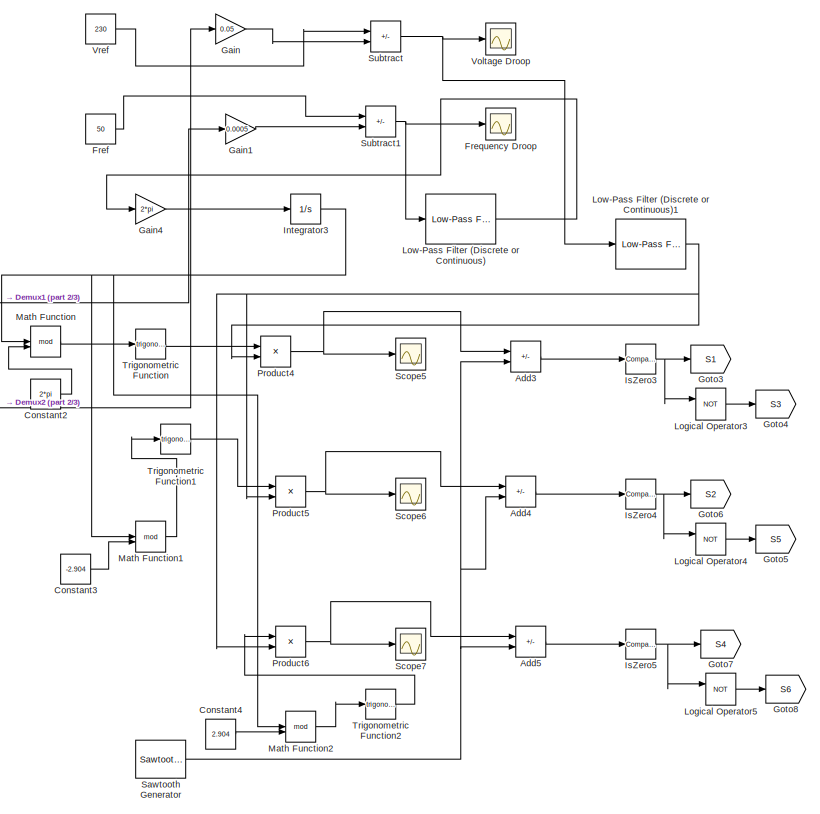
[diagram: root canvas - part 1/3, right side, full height]
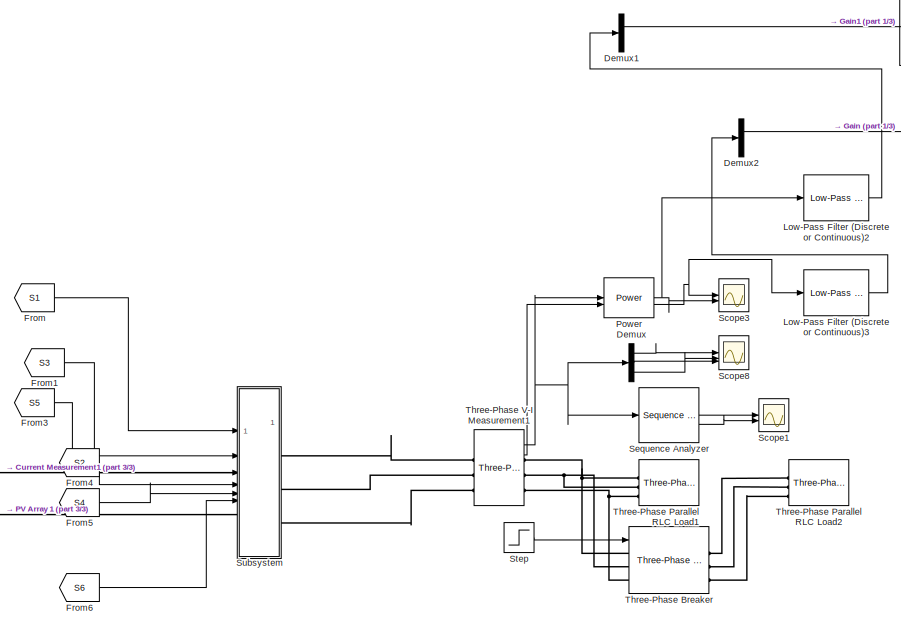
[diagram: root canvas - part 2/3, central region]
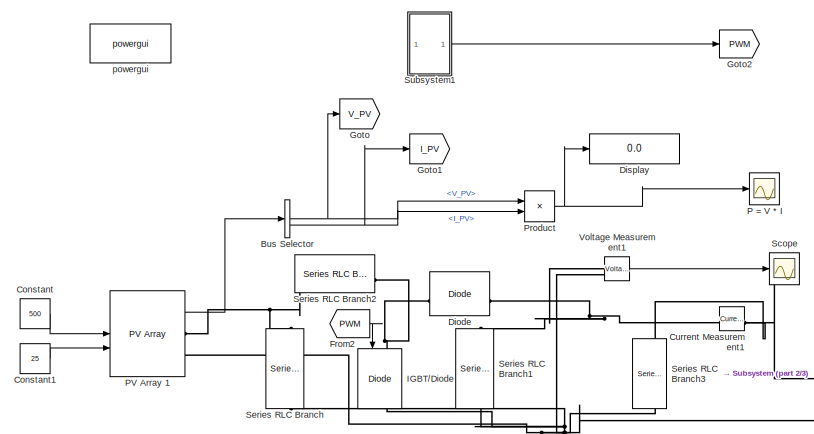
[diagram: root canvas - part 3/3, middle left region]
MODEL slx_a66deaae7f1c
KIND model
CONFIG AbsTol = auto
CONFIG EnableMultiTasking = off
CONFIG FixedStep = 1e-6
CONFIG MaxStep = auto
CONFIG MinStep = auto
CONFIG RelTol = 1e-3
CONFIG SampleTimeConstraint = Unconstrained
CONFIG SolverName = ode4
CONFIG StartTime = 0.0
CONFIG StopTime = 1
BLOCK [Sum] Add3
  IconShape = rectangular
  Inputs = +-
BLOCK [Sum] Add4
  IconShape = rectangular
  Inputs = +-
BLOCK [Sum] Add5
  IconShape = rectangular
  Inputs = +-
BLOCK [BusSelector] Bus Selector
  OutputSignals = V_PV,I_PV
BLOCK [Constant] Constant
  Value = 500
BLOCK [Constant] Constant1
  Value = 25
BLOCK [Constant] Constant2
  Value = 2*pi
BLOCK [Constant] Constant3
  Value = -2.904
BLOCK [Constant] Constant4
  Value = 2.904
BLOCK [Reference] Current Measurement1  REF=spsCurrentMeasurementLib/Current Measurement
  LibrarySourceBlock = sps_lib/Sensors and Measurements/Current Measurement
  SourceBlock = spsCurrentMeasurementLib/Current Measurement
  SourceType = Current Measurement
  UserDataPersistent = on
BLOCK [Demux] Demux
  Outputs = 3
BLOCK [Demux] Demux1
  Outputs = 2
BLOCK [Demux] Demux2
  Outputs = 2
BLOCK [Reference] Diode  REF=spsDiodeLib/Diode
  LibrarySourceBlock = sps_lib/Power Electronics/Diode
  SourceBlock = spsDiodeLib/Diode
  SourceType = Diode
BLOCK [Display] Display
  Decimation = 1
BLOCK [Constant] Fref
  Value = 50
BLOCK [Scope] Frequency Droop
  Floating = off
  NumInputPorts = 1
  ScopeSpecificationString = Simulink.scopes.TimeScopeBlockCfg('CurrentConfiguration', extmgr.ConfigurationSet(extmgr.Configuration('Core','General UI',true),extmgr.Configuration('Core','Source UI',true),extmgr.Configuration('Sources','WiredSimulink',true,'DataLoggingVariableName','ScopeData2'),extmgr.Configuration('Visuals','Time Domain',true,'SerializedDisplays',{struct('MinYLimReal','49.95181','MaxYLimReal','50.00508','YLa...<+1491ch>
BLOCK [From] From
  GotoTag = S1
BLOCK [From] From1
  GotoTag = S3
BLOCK [From] From2
  GotoTag = PWM
BLOCK [From] From3
  GotoTag = S5
BLOCK [From] From4
  GotoTag = S2
BLOCK [From] From5
  GotoTag = S4
BLOCK [From] From6
  GotoTag = S6
BLOCK [Gain] Gain
  Gain = 0.05
BLOCK [Gain] Gain1
  Gain = 0.0005
BLOCK [Gain] Gain4
  Gain = 2*pi
BLOCK [Goto] Goto
  GotoTag = V_PV
BLOCK [Goto] Goto1
  GotoTag = I_PV
BLOCK [Goto] Goto2
  GotoTag = PWM
BLOCK [Goto] Goto3
  GotoTag = S1
BLOCK [Goto] Goto4
  GotoTag = S3
BLOCK [Goto] Goto5
  GotoTag = S5
BLOCK [Goto] Goto6
  GotoTag = S2
BLOCK [Goto] Goto7
  GotoTag = S4
BLOCK [Goto] Goto8
  GotoTag = S6
BLOCK [Reference] IGBT//Diode  REF=spsIGBTDiodeLib/IGBT//Diode
  NameLocation = left
  SourceBlock = spsIGBTDiodeLib/IGBT//Diode
  SourceType = IGBT/Diode
BLOCK [Integrator] Integrator3
BLOCK [Reference] IsZero3  REF=simulink/Logic and Bit
Operations/Compare
To Zero
  LibrarySourceBlock = simulink/Quick Insert/Logic and Bit\nOperations/IsZero
  SourceBlock = simulink/Logic and Bit\nOperations/Compare\nTo Zero
  SourceType = Compare To Zero
BLOCK [Reference] IsZero4  REF=simulink/Logic and Bit
Operations/Compare
To Zero
  LibrarySourceBlock = simulink/Quick Insert/Logic and Bit\nOperations/IsZero
  SourceBlock = simulink/Logic and Bit\nOperations/Compare\nTo Zero
  SourceType = Compare To Zero
BLOCK [Reference] IsZero5  REF=simulink/Logic and Bit
Operations/Compare
To Zero
  LibrarySourceBlock = simulink/Quick Insert/Logic and Bit\nOperations/IsZero
  SourceBlock = simulink/Logic and Bit\nOperations/Compare\nTo Zero
  SourceType = Compare To Zero
BLOCK [Logic] Logical Operator3
  AllPortsSameDT = off
  Operator = NOT
  OutDataTypeStr = boolean
BLOCK [Logic] Logical Operator4
  AllPortsSameDT = off
  Operator = NOT
  OutDataTypeStr = boolean
BLOCK [Logic] Logical Operator5
  AllPortsSameDT = off
  Operator = NOT
  OutDataTypeStr = boolean
BLOCK [Reference] Low-Pass Filter (Discrete or Continuous)  REF=eeGeneralControl/Low-Pass Filter
(Discrete or Continuous)
  LibrarySourceBlock = ee_sl_lib/General Control/Low-Pass Filter\n(Discrete or Continuous)
  SourceBlock = eeGeneralControl/Low-Pass Filter\n(Discrete or Continuous)
  SourceType = Low-Pass Filter (Discrete or Continuous)
BLOCK [Reference] Low-Pass Filter (Discrete or Continuous)1  REF=eeGeneralControl/Low-Pass Filter
(Discrete or Continuous)
  LibrarySourceBlock = ee_sl_lib/General Control/Low-Pass Filter\n(Discrete or Continuous)
  SourceBlock = eeGeneralControl/Low-Pass Filter\n(Discrete or Continuous)
  SourceType = Low-Pass Filter (Discrete or Continuous)
BLOCK [Reference] Low-Pass Filter (Discrete or Continuous)2  REF=eeGeneralControl/Low-Pass Filter
(Discrete or Continuous)
  LibrarySourceBlock = ee_sl_lib/General Control/Low-Pass Filter\n(Discrete or Continuous)
  SourceBlock = eeGeneralControl/Low-Pass Filter\n(Discrete or Continuous)
  SourceType = Low-Pass Filter (Discrete or Continuous)
BLOCK [Reference] Low-Pass Filter (Discrete or Continuous)3  REF=eeGeneralControl/Low-Pass Filter
(Discrete or Continuous)
  LibrarySourceBlock = ee_sl_lib/General Control/Low-Pass Filter\n(Discrete or Continuous)
  SourceBlock = eeGeneralControl/Low-Pass Filter\n(Discrete or Continuous)
  SourceType = Low-Pass Filter (Discrete or Continuous)
BLOCK [Math] Math Function
  Operator = mod
BLOCK [Math] Math Function1
  Operator = mod
BLOCK [Math] Math Function2
  Operator = mod
BLOCK [Scope] P = V * I 
  Floating = off
  NumInputPorts = 1
  ScopeSpecificationString = Simulink.scopes.TimeScopeBlockCfg('CurrentConfiguration', extmgr.ConfigurationSet(extmgr.Configuration('Core','General UI',true),extmgr.Configuration('Core','Source UI',true),extmgr.Configuration('Sources','WiredSimulink',true),extmgr.Configuration('Visuals','Time Domain',true,'SerializedDisplays',{struct('MinYLimReal','-6428.97607','MaxYLimReal','58073.00094','YLabelReal','','MinYLimMag','  0.000...<+1505ch>
BLOCK [Reference] PV Array 1  REF=spsPVArrayLib/PV Array
  LibrarySourceBlock = sps_lib/Sources/PV Array
  SourceBlock = spsPVArrayLib/PV Array
  SourceType = PV array
BLOCK [Reference] Power  REF=spsPowerLib/Power
  LibrarySourceBlock = sps_lib/Sensors and Measurements/Power
  SourceBlock = spsPowerLib/Power
  SourceType = Power
BLOCK [Product] Product
BLOCK [Product] Product4
BLOCK [Product] Product5
BLOCK [Product] Product6
BLOCK [Reference] Sawtooth Generator  REF=spsSawtoothGeneratorLib/Sawtooth
Generator
  LibrarySourceBlock = sps_lib/Sources/Signal Generator Sources/Sawtooth\nGenerator
  SourceBlock = spsSawtoothGeneratorLib/Sawtooth\nGenerator
  SourceType = Sawtooth Generator
BLOCK [Scope] Scope
  Floating = off
  NumInputPorts = 1
  ScopeSpecificationString = Simulink.scopes.TimeScopeBlockCfg('CurrentConfiguration', extmgr.ConfigurationSet(extmgr.Configuration('Core','General UI',true),extmgr.Configuration('Core','Source UI',true),extmgr.Configuration('Sources','WiredSimulink',true,'DataLoggingVariableName','ScopeData1'),extmgr.Configuration('Visuals','Time Domain',true),extmgr.Configuration('Tools','Plot Navigation',true),extmgr.Configuration('Tools',...<+40ch>
BLOCK [Scope] Scope1
  Floating = off
  NumInputPorts = 2
  ScopeSpecificationString = Simulink.scopes.TimeScopeBlockCfg('CurrentConfiguration', extmgr.ConfigurationSet(extmgr.Configuration('Core','General UI',true),extmgr.Configuration('Core','Source UI',true),extmgr.Configuration('Sources','WiredSimulink',true,'DataLoggingVariableName','ScopeData3'),extmgr.Configuration('Visuals','Time Domain',true,'SerializedDisplays',{struct('MinYLimReal','-224.99999','MaxYLimReal','224.99997','...<+1555ch>
BLOCK [Scope] Scope3
  Floating = off
  NumInputPorts = 2
  ScopeSpecificationString = Simulink.scopes.TimeScopeBlockCfg('CurrentConfiguration', extmgr.ConfigurationSet(extmgr.Configuration('Core','General UI',true),extmgr.Configuration('Core','Source UI',true),extmgr.Configuration('Sources','WiredSimulink',true,'DataLoggingVariableName','ScopeData1'),extmgr.Configuration('Visuals','Time Domain',true,'SerializedDisplays',{struct('MinYLimReal','-67.274','MaxYLimReal','469.48804','YLa...<+1551ch>
BLOCK [Scope] Scope5
  Floating = off
  NumInputPorts = 1
  ScopeSpecificationString = Simulink.scopes.TimeScopeBlockCfg('CurrentConfiguration', extmgr.ConfigurationSet(extmgr.Configuration('Core','General UI',true),extmgr.Configuration('Core','Source UI',true),extmgr.Configuration('Sources','WiredSimulink',true,'DataLoggingVariableName','ScopeData3'),extmgr.Configuration('Visuals','Time Domain',true),extmgr.Configuration('Tools','Plot Navigation',true),extmgr.Configuration('Tools',...<+40ch>
BLOCK [Scope] Scope6
  Floating = off
  NumInputPorts = 1
  ScopeSpecificationString = Simulink.scopes.TimeScopeBlockCfg('CurrentConfiguration', extmgr.ConfigurationSet(extmgr.Configuration('Core','General UI',true),extmgr.Configuration('Core','Source UI',true),extmgr.Configuration('Sources','WiredSimulink',true,'DataLoggingVariableName','ScopeData4'),extmgr.Configuration('Visuals','Time Domain',true),extmgr.Configuration('Tools','Plot Navigation',true),extmgr.Configuration('Tools',...<+40ch>
BLOCK [Scope] Scope7
  Floating = off
  NumInputPorts = 1
  ScopeSpecificationString = Simulink.scopes.TimeScopeBlockCfg('CurrentConfiguration', extmgr.ConfigurationSet(extmgr.Configuration('Core','General UI',true),extmgr.Configuration('Core','Source UI',true),extmgr.Configuration('Sources','WiredSimulink',true,'DataLoggingVariableName','ScopeData5'),extmgr.Configuration('Visuals','Time Domain',true,'SerializedDisplays',{struct('MinYLimReal','73148.47675','MaxYLimReal','73603.44726...<+1486ch>
BLOCK [Scope] Scope8
  Floating = off
  NumInputPorts = 3
  ScopeSpecificationString = Simulink.scopes.TimeScopeBlockCfg('CurrentConfiguration', extmgr.ConfigurationSet(extmgr.Configuration('Core','General UI',true),extmgr.Configuration('Core','Source UI',true),extmgr.Configuration('Sources','WiredSimulink',true,'DataLoggingVariableName','ScopeData4'),extmgr.Configuration('Visuals','Time Domain',true,'SerializedDisplays',{struct('MinYLimReal','-0.21887','MaxYLimReal','0.21889','YLab...<+1475ch>
BLOCK [Reference] Sequence Analyzer  REF=eeSequenceAnalyzer/Sequence Analyzer
  LibrarySourceBlock = ee_sl_lib/Measurements/Sequence Analyzer
  SourceBlock = eeSequenceAnalyzer/Sequence Analyzer
  SourceType = Sequence Analyzer
BLOCK [Reference] Series RLC Branch  REF=spsSeriesRLCBranchLib/Series RLC Branch
  LibrarySourceBlock = sps_lib/Passives/Series RLC Branch
  NameLocation = left
  SourceBlock = spsSeriesRLCBranchLib/Series RLC Branch
  SourceType = Series RLC Branch
BLOCK [Reference] Series RLC Branch1  REF=spsSeriesRLCBranchLib/Series RLC Branch
  LibrarySourceBlock = sps_lib/Passives/Series RLC Branch
  NameLocation = right
  SourceBlock = spsSeriesRLCBranchLib/Series RLC Branch
  SourceType = Series RLC Branch
BLOCK [Reference] Series RLC Branch2  REF=spsSeriesRLCBranchLib/Series RLC Branch
  LibrarySourceBlock = sps_lib/Passives/Series RLC Branch
  NameLocation = top
  SourceBlock = spsSeriesRLCBranchLib/Series RLC Branch
  SourceType = Series RLC Branch
BLOCK [Reference] Series RLC Branch3  REF=spsSeriesRLCBranchLib/Series RLC Branch
  LibrarySourceBlock = sps_lib/Passives/Series RLC Branch
  NameLocation = right
  SourceBlock = spsSeriesRLCBranchLib/Series RLC Branch
  SourceType = Series RLC Branch
BLOCK [Step] Step
  SampleTime = 0
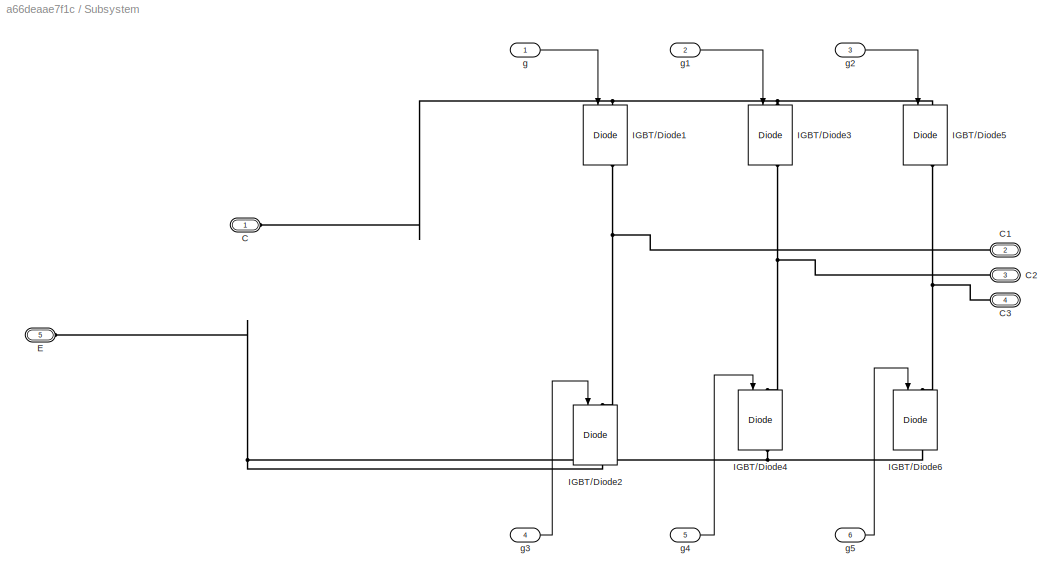
BLOCK [SubSystem] Subsystem
BLOCK [PMIOPort] Subsystem/C
  Side = Left
BLOCK [PMIOPort] Subsystem/C1
  Port = 2
  Side = Right
BLOCK [PMIOPort] Subsystem/C2
  Port = 3
  Side = Right
BLOCK [PMIOPort] Subsystem/C3
  Port = 4
  Side = Right
BLOCK [PMIOPort] Subsystem/E
  Port = 5
  Side = Left
BLOCK [Reference] Subsystem/IGBT//Diode1  REF=spsIGBTDiodeLib/IGBT//Diode
  NameLocation = left
  SourceBlock = spsIGBTDiodeLib/IGBT//Diode
  SourceType = IGBT/Diode
BLOCK [Reference] Subsystem/IGBT//Diode2  REF=spsIGBTDiodeLib/IGBT//Diode
  NameLocation = left
  SourceBlock = spsIGBTDiodeLib/IGBT//Diode
  SourceType = IGBT/Diode
BLOCK [Reference] Subsystem/IGBT//Diode3  REF=spsIGBTDiodeLib/IGBT//Diode
  NameLocation = left
  SourceBlock = spsIGBTDiodeLib/IGBT//Diode
  SourceType = IGBT/Diode
BLOCK [Reference] Subsystem/IGBT//Diode4  REF=spsIGBTDiodeLib/IGBT//Diode
  NameLocation = left
  SourceBlock = spsIGBTDiodeLib/IGBT//Diode
  SourceType = IGBT/Diode
BLOCK [Reference] Subsystem/IGBT//Diode5  REF=spsIGBTDiodeLib/IGBT//Diode
  NameLocation = left
  SourceBlock = spsIGBTDiodeLib/IGBT//Diode
  SourceType = IGBT/Diode
BLOCK [Reference] Subsystem/IGBT//Diode6  REF=spsIGBTDiodeLib/IGBT//Diode
  NameLocation = left
  SourceBlock = spsIGBTDiodeLib/IGBT//Diode
  SourceType = IGBT/Diode
BLOCK [Inport] Subsystem/g
BLOCK [Inport] Subsystem/g1
  Port = 2
BLOCK [Inport] Subsystem/g2
  Port = 3
BLOCK [Inport] Subsystem/g3
  Port = 4
BLOCK [Inport] Subsystem/g4
  Port = 5
BLOCK [Inport] Subsystem/g5
  Port = 6
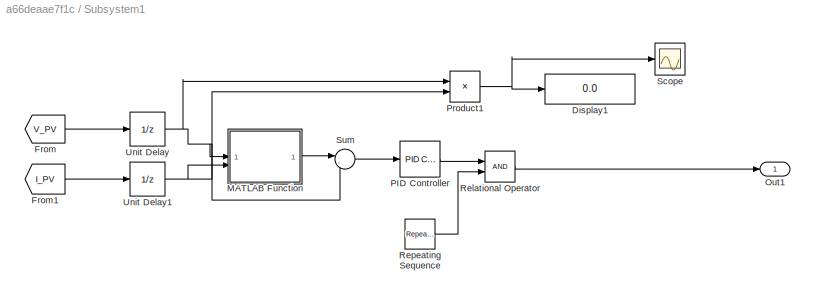
BLOCK [SubSystem] Subsystem1
BLOCK [Display] Subsystem1/Display1
  Decimation = 1
BLOCK [From] Subsystem1/From
  GotoTag = V_PV
BLOCK [From] Subsystem1/From1
  GotoTag = I_PV
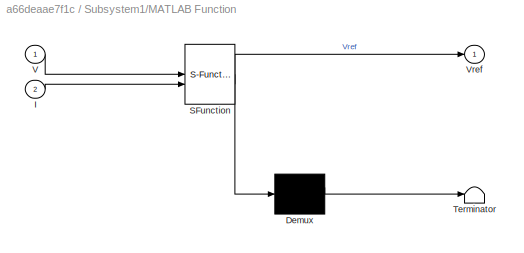
BLOCK [SubSystem] Subsystem1/MATLAB Function
  ErrorFcn = Stateflow.Translate.translate
  PermitHierarchicalResolution = ExplicitOnly
  SFBlockType = MATLAB Function
  TreatAsAtomicUnit = on
BLOCK [Demux] Subsystem1/MATLAB Function/ Demux 
  Outputs = 1
BLOCK [S-Function] Subsystem1/MATLAB Function/ SFunction 
  EnableBusSupport = on
  FunctionName = sf_sfun
  PortCounts = [2 2]
  SFcnIsStateOwnerBlock = off
  SFunctionDeploymentMode = off
  Tag = Stateflow S-Function 2
BLOCK [Terminator] Subsystem1/MATLAB Function/ Terminator 
BLOCK [Inport] Subsystem1/MATLAB Function/I
  Port = 2
BLOCK [Inport] Subsystem1/MATLAB Function/V
BLOCK [Outport] Subsystem1/MATLAB Function/Vref
BLOCK [Outport] Subsystem1/Out1
BLOCK [Reference] Subsystem1/PID Controller  REF=slpidlib/PID Controller
  LibrarySourceBlock = simulink/Continuous/PID Controller
  SourceBlock = slpidlib/PID Controller
  SourceType = PID 1dof
BLOCK [Product] Subsystem1/Product1
BLOCK [RelationalOperator] Subsystem1/Relational Operator
  InputSameDT = off
  OutDataTypeStr = boolean
  RndMeth = Simplest
BLOCK [Reference] Subsystem1/Repeating Sequence  REF=simulink/Sources/Repeating
Sequence
  SourceBlock = simulink/Sources/Repeating\nSequence
  SourceType = Repeating table
BLOCK [Scope] Subsystem1/Scope
  Floating = off
  NumInputPorts = 1
  ScopeSpecificationString = Simulink.scopes.TimeScopeBlockCfg('CurrentConfiguration', extmgr.ConfigurationSet(extmgr.Configuration('Core','General UI',true),extmgr.Configuration('Core','Source UI',true),extmgr.Configuration('Sources','WiredSimulink',true,'DataLoggingVariableName','ScopeData1'),extmgr.Configuration('Visuals','Time Domain',true,'SerializedDisplays',{struct('MinYLimReal','-1.00000','MaxYLimReal','1.00000','YLab...<+1486ch>
BLOCK [Sum] Subsystem1/Sum
  Inputs = |-+
BLOCK [UnitDelay] Subsystem1/Unit Delay
  HasFrameUpgradeWarning = on
  SampleTime = 1e-4
BLOCK [UnitDelay] Subsystem1/Unit Delay1
  HasFrameUpgradeWarning = on
  SampleTime = 1e-4
BLOCK [Sum] Subtract
  IconShape = rectangular
  Inputs = +-
BLOCK [Sum] Subtract1
  IconShape = rectangular
  Inputs = +-
BLOCK [Reference] Three-Phase Breaker  REF=spsThreePhaseBreakerLib/Three-Phase Breaker
  LibrarySourceBlock = sps_lib/Power Grid Elements/Three-Phase Breaker
  SourceBlock = spsThreePhaseBreakerLib/Three-Phase Breaker
  SourceType = Three-Phase Breaker
BLOCK [Reference] Three-Phase Parallel RLC Load1  REF=spsThreePhaseParallelRLCLoadLib/Three-Phase
Parallel RLC Load
  AttributesFormatString = \n
  LibrarySourceBlock = sps_lib/Passives/Three-Phase\nParallel RLC Load
  NameLocation = right
  SourceBlock = spsThreePhaseParallelRLCLoadLib/Three-Phase\nParallel RLC Load
  SourceType = Three-Phase Parallel RLC Load
BLOCK [Reference] Three-Phase Parallel RLC Load2  REF=spsThreePhaseParallelRLCLoadLib/Three-Phase
Parallel RLC Load
  AttributesFormatString = \n
  LibrarySourceBlock = sps_lib/Passives/Three-Phase\nParallel RLC Load
  NameLocation = right
  SourceBlock = spsThreePhaseParallelRLCLoadLib/Three-Phase\nParallel RLC Load
  SourceType = Three-Phase Parallel RLC Load
BLOCK [Reference] Three-Phase V-I Measurement1  REF=spsThreePhaseVIMeasurementLib/Three-Phase
V-I Measurement
  LibrarySourceBlock = sps_lib/Sensors and Measurements/Three-Phase\nV-I Measurement
  SourceBlock = spsThreePhaseVIMeasurementLib/Three-Phase\nV-I Measurement
  SourceType = Three-Phase VI Measurement
BLOCK [Trigonometry] Trigonometric Function
BLOCK [Trigonometry] Trigonometric Function1
BLOCK [Trigonometry] Trigonometric Function2
BLOCK [Scope] Voltage Droop
  Floating = off
  NumInputPorts = 1
  ScopeSpecificationString = Simulink.scopes.TimeScopeBlockCfg('CurrentConfiguration', extmgr.ConfigurationSet(extmgr.Configuration('Core','General UI',true),extmgr.Configuration('Core','Source UI',true),extmgr.Configuration('Sources','WiredSimulink',true,'DataLoggingVariableName','ScopeData1'),extmgr.Configuration('Visuals','Time Domain',true,'SerializedDisplays',{struct('MinYLimReal','229.24895','MaxYLimReal','230.08345','Y...<+1498ch>
BLOCK [Reference] Voltage Measurement1  REF=spsVoltageMeasurementLib/Voltage Measurement
  LibrarySourceBlock = sps_lib/Sensors and Measurements/Voltage Measurement
  SourceBlock = spsVoltageMeasurementLib/Voltage Measurement
  SourceType = Voltage Measurement
  UserDataPersistent = on
BLOCK [Constant] Vref
  Value = 230
BLOCK [Reference] powergui  REF=sps_lib/powergui
  LibrarySourceBlock = sps_lib/powergui
  Priority = 1
  SourceBlock = sps_lib/powergui
  SourceType = PSB option menu block
LINE Add3:1 -> IsZero3:1
LINE Add4:1 -> IsZero4:1
LINE Add5:1 -> IsZero5:1
NET Bus Selector:1 -> Goto:1, Product:1
NET Bus Selector:2 -> Goto1:1, Product:2
LINE Constant1:1 -> PV Array 1:2
LINE Constant2:1 -> Math Function:2
LINE Constant3:1 -> Math Function1:2
LINE Constant4:1 -> Math Function2:2
LINE Constant:1 -> PV Array 1:1
LINE Demux1:1 -> Gain1:1
LINE Demux2:1 -> Gain:1
LINE Demux:1 -> Scope8:1
LINE Demux:2 -> Scope8:3
LINE Demux:3 -> Scope8:2
LINE Fref:1 -> Subtract1:1
LINE From1:1 -> Subsystem:2
LINE From2:1 -> IGBT//Diode:1
LINE From3:1 -> Subsystem:3
LINE From4:1 -> Subsystem:4
LINE From5:1 -> Subsystem:5
LINE From6:1 -> Subsystem:6
LINE From:1 -> Subsystem:1
LINE Gain1:1 -> Subtract1:2
LINE Gain4:1 -> Integrator3:1
LINE Gain:1 -> Subtract:2
NET Integrator3:1 -> Math Function1:1, Math Function2:1, Math Function:1
NET IsZero3:1 -> Goto3:1, Logical Operator3:1
NET IsZero4:1 -> Goto6:1, Logical Operator4:1
NET IsZero5:1 -> Goto7:1, Logical Operator5:1
LINE Logical Operator3:1 -> Goto4:1
LINE Logical Operator4:1 -> Goto5:1
LINE Logical Operator5:1 -> Goto8:1
NET Low-Pass Filter (Discrete or Continuous)1:1 -> Product4:2, Product5:2, Product6:2
LINE Low-Pass Filter (Discrete or Continuous)2:1 -> Demux1:1
LINE Low-Pass Filter (Discrete or Continuous)3:1 -> Demux2:1
LINE Low-Pass Filter (Discrete or Continuous):1 -> Gain4:1
LINE Math Function1:1 -> Trigonometric Function1:1
LINE Math Function2:1 -> Trigonometric Function2:1
LINE Math Function:1 -> Trigonometric Function:1
LINE PV Array 1:1 -> Bus Selector:1
NET Power:1 -> Low-Pass Filter (Discrete or Continuous)2:1, Scope3:2
NET Power:2 -> Low-Pass Filter (Discrete or Continuous)3:1, Scope3:1
NET Product4:1 -> Add3:1, Scope5:1
NET Product5:1 -> Add4:1, Scope6:1
NET Product6:1 -> Add5:1, Scope7:1
NET Product:1 -> Display:1, P = V * I :1
NET Sawtooth Generator:1 -> Add3:2, Add4:2, Add5:2
LINE Sequence Analyzer:1 -> Scope1:1
LINE Sequence Analyzer:2 -> Scope1:2
LINE Step:1 -> Three-Phase Breaker:1
LINE Subsystem/g1:1 -> Subsystem/IGBT//Diode3:1
LINE Subsystem/g2:1 -> Subsystem/IGBT//Diode5:1
LINE Subsystem/g3:1 -> Subsystem/IGBT//Diode2:1
LINE Subsystem/g4:1 -> Subsystem/IGBT//Diode4:1
LINE Subsystem/g5:1 -> Subsystem/IGBT//Diode6:1
LINE Subsystem/g:1 -> Subsystem/IGBT//Diode1:1
LINE Subsystem1/From1:1 -> Subsystem1/Unit Delay1:1
LINE Subsystem1/From:1 -> Subsystem1/Unit Delay:1
LINE Subsystem1/MATLAB Function:1 -> Subsystem1/Sum:1
LINE Subsystem1/PID Controller:1 -> Subsystem1/Relational Operator:1
NET Subsystem1/Product1:1 -> Subsystem1/Display1:1, Subsystem1/Scope:1
LINE Subsystem1/Relational Operator:1 -> Subsystem1/Out1:1
LINE Subsystem1/Repeating Sequence:1 -> Subsystem1/Relational Operator:2
LINE Subsystem1/Sum:1 -> Subsystem1/PID Controller:1
NET Subsystem1/Unit Delay1:1 -> Subsystem1/MATLAB Function:2, Subsystem1/Product1:2
NET Subsystem1/Unit Delay:1 -> Subsystem1/MATLAB Function:1, Subsystem1/Product1:1, Subsystem1/Sum:2
LINE Subsystem1:1 -> Goto2:1
NET Subtract1:1 -> Frequency Droop:1, Low-Pass Filter (Discrete or Continuous):1
NET Subtract:1 -> Low-Pass Filter (Discrete or Continuous)1:1, Voltage Droop:1
NET Three-Phase V-I Measurement1:1 -> Demux:1, Power:1, Sequence Analyzer:1
LINE Three-Phase V-I Measurement1:2 -> Power:2
LINE Trigonometric Function1:1 -> Product5:1
LINE Trigonometric Function2:1 -> Product6:1
LINE Trigonometric Function:1 -> Product4:1
LINE Voltage Measurement1:1 -> Scope:1
LINE Vref:1 -> Subtract:1
PNET net1: Current Measurement1:LConn1 -- Diode:RConn1 -- Series RLC Branch1:RConn1 -- Voltage Measurement1:LConn1
PNET net2: Current Measurement1:RConn1 -- Series RLC Branch3:RConn1 -- Subsystem:LConn1
PNET net3: Diode:LConn1 -- IGBT//Diode:LConn1 -- Series RLC Branch2:LConn1
PNET net4: IGBT//Diode:RConn1 -- PV Array 1:RConn2 -- Series RLC Branch1:LConn1 -- Series RLC Branch3:LConn1 -- Series RLC Branch:RConn1 -- Subsystem:LConn2 -- Voltage Measurement1:LConn2
PNET net5: PV Array 1:RConn1 -- Series RLC Branch2:RConn1 -- Series RLC Branch:LConn1
PNET net6: Subsystem/C1:RConn1 -- Subsystem/IGBT//Diode1:RConn1 -- Subsystem/IGBT//Diode2:LConn1
PNET net7: Subsystem/C2:RConn1 -- Subsystem/IGBT//Diode3:RConn1 -- Subsystem/IGBT//Diode4:LConn1
PNET net8: Subsystem/C3:RConn1 -- Subsystem/IGBT//Diode5:RConn1 -- Subsystem/IGBT//Diode6:LConn1
PNET net9: Subsystem/C:RConn1 -- Subsystem/IGBT//Diode1:LConn1 -- Subsystem/IGBT//Diode3:LConn1 -- Subsystem/IGBT//Diode5:LConn1
PNET net10: Subsystem/E:RConn1 -- Subsystem/IGBT//Diode2:RConn1 -- Subsystem/IGBT//Diode4:RConn1 -- Subsystem/IGBT//Diode6:RConn1
PLINE Subsystem:RConn1 -- Three-Phase V-I Measurement1:LConn1
PLINE Subsystem:RConn2 -- Three-Phase V-I Measurement1:LConn2
PLINE Subsystem:RConn3 -- Three-Phase V-I Measurement1:LConn3
PNET net11: Three-Phase Breaker:LConn1 -- Three-Phase Parallel RLC Load1:LConn1 -- Three-Phase V-I Measurement1:RConn1
PNET net12: Three-Phase Breaker:LConn2 -- Three-Phase Parallel RLC Load1:LConn2 -- Three-Phase V-I Measurement1:RConn2
PNET net13: Three-Phase Breaker:LConn3 -- Three-Phase Parallel RLC Load1:LConn3 -- Three-Phase V-I Measurement1:RConn3
PLINE Three-Phase Breaker:RConn1 -- Three-Phase Parallel RLC Load2:LConn1
PLINE Three-Phase Breaker:RConn2 -- Three-Phase Parallel RLC Load2:LConn2
PLINE Three-Phase Breaker:RConn3 -- Three-Phase Parallel RLC Load2:LConn3
note: NET lines group one-source signal fan-out (src -> all destinations, sorted); 1:1 wires keep LINE; PNET lines group multi-terminal physical nets as a canonical sorted terminal list (undirected conserving connections); 2-terminal nets keep the pairwise PLINE form
CHART Subsystem1/MATLAB Function states=1 transitions=1
  STATE_LABEL 'eML_blk_kernel()'
  STATE_LABEL "SCRIPT:\nfunction Vref = RefGen(V, I)\n    % Define constants\n    Vrefmax = 363;\n    Vrefmin = 0;\n    Vrefinit = 300;\n    deltaVref = 1;\n    \n    % Define data type for code generation\n    dataType = 'double';\n    \n    % Initialize persistent variables\n    persistent Vold Pold Vrefold;\n    if isempty(Vold)\n        Vold = 0;\n        Pold = 0;\n        Vrefold = Vrefinit;\n    end\n    \n    % Calculate c...<+1127ch>"
CHART  states=0 transitions=0
